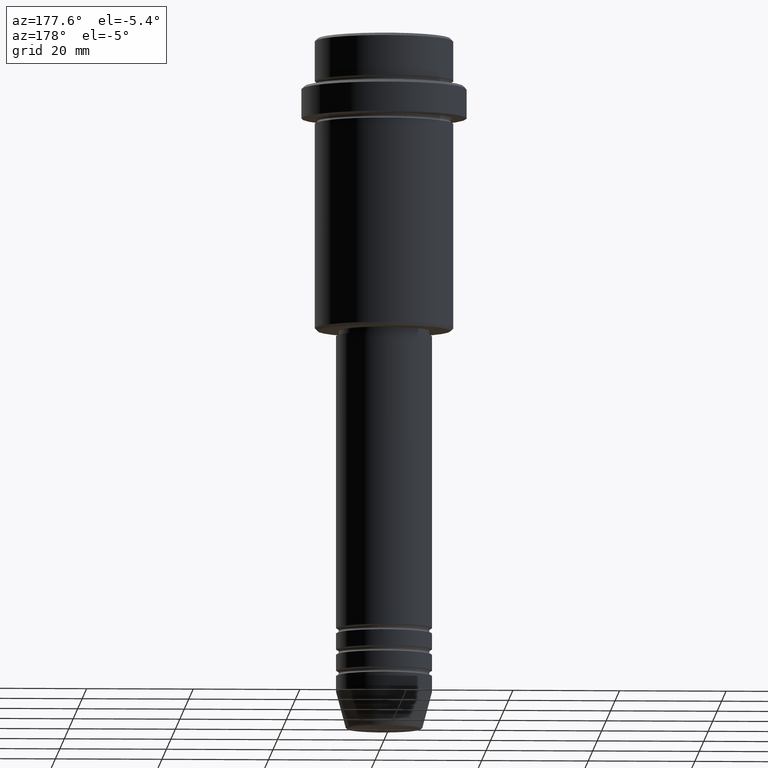
[diagram: clean part render]
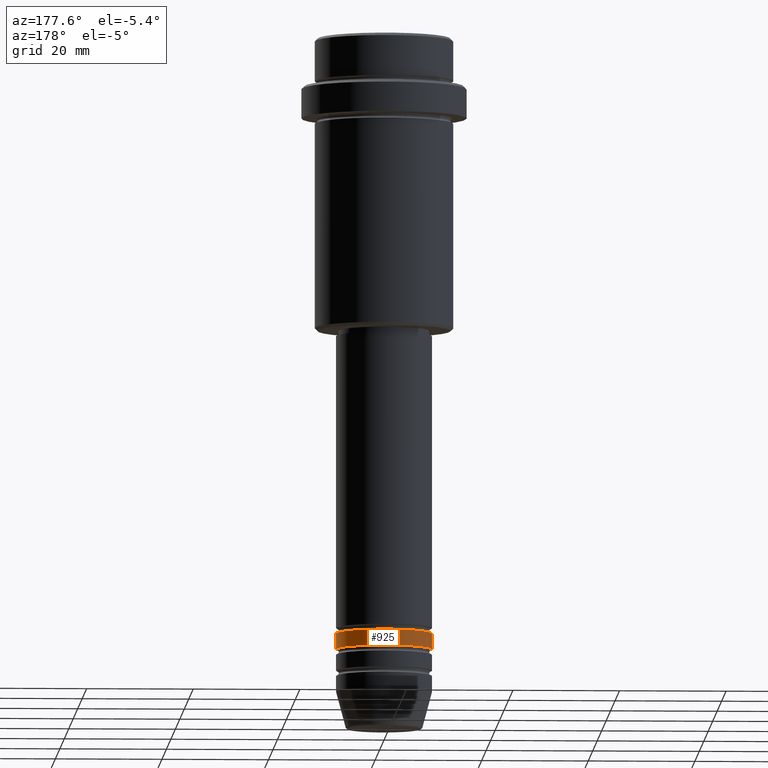
[diagram: same view with one face highlighted and labeled with its STEP entity id]
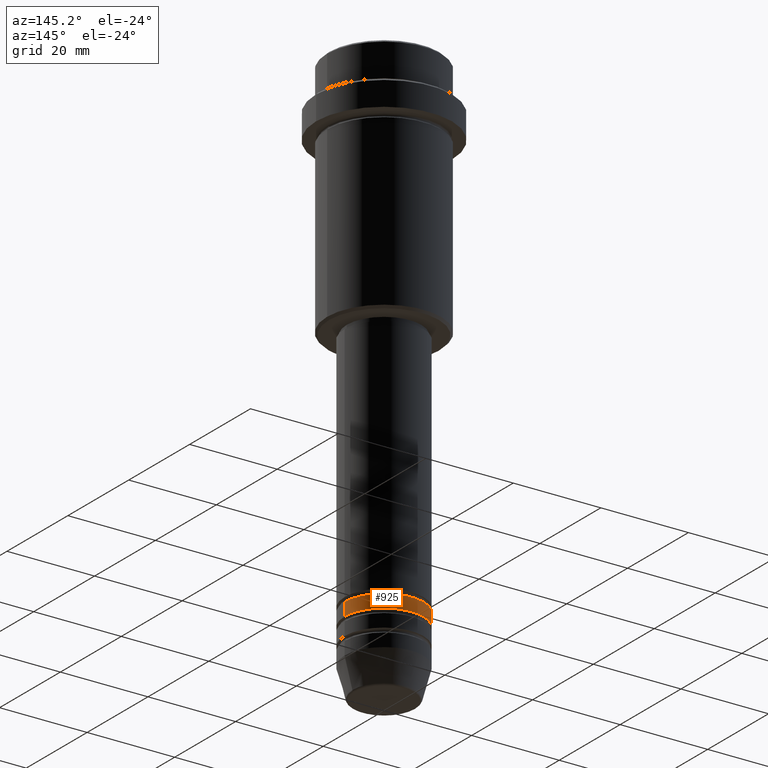
[diagram: same view with one face highlighted and labeled with its STEP entity id]
A machine part, auxiliary view. The second image highlights one B-rep face of the part: STEP entity #925.
A second angle (auxiliary view) of the same face is appended — the face is thin or edge-on in the first view.
In plain terms, the highlighted cylindrical surface (partial cylindrical patch) has radius 9 mm, axis along (-0, -0, 1).
Its self-contained STEP definition (entity closure, byte-faithful):
#49 = CARTESIAN_POINT ( 'NONE',  ( 9.000000000000000000, 0.000000000000000000, 0.000000000000000000 ) ) ;
#79 = CARTESIAN_POINT ( 'NONE',  ( 0.000000000000000000, 0.000000000000000000, 0.000000000000000000 ) ) ;
#119 = ORIENTED_EDGE ( 'NONE', *, *, #1038, .T. ) ;
#127 = CIRCLE ( 'NONE', #1037, 9.000000000000000000 ) ;
#144 = CARTESIAN_POINT ( 'NONE',  ( -9.000000000000000000, 1.102182119232617714E-15, 0.000000000000000000 ) ) ;
#148 = DIRECTION ( 'NONE',  ( -0.000000000000000000, -0.000000000000000000, 1.000000000000000000 ) ) ;
#225 = DIRECTION ( 'NONE',  ( 1.000000000000000000, 0.000000000000000000, 0.000000000000000000 ) ) ;
#234 = EDGE_CURVE ( 'NONE', #817, #359, #920, .T. ) ;
#330 = EDGE_CURVE ( 'NONE', #1111, #359, #1118, .T. ) ;
#359 = VERTEX_POINT ( 'NONE', #379 ) ;
#379 = CARTESIAN_POINT ( 'NONE',  ( -9.000000000000000000, 1.102182119232617714E-15, -111.9999999999998721 ) ) ;
#406 = VERTEX_POINT ( 'NONE', #950 ) ;
#422 = DIRECTION ( 'NONE',  ( -0.000000000000000000, -0.000000000000000000, 1.000000000000000000 ) ) ;
#445 = CARTESIAN_POINT ( 'NONE',  ( 0.000000000000000000, 0.000000000000000000, -111.9999999999998721 ) ) ;
#485 = ORIENTED_EDGE ( 'NONE', *, *, #1198, .F. ) ;
#522 = ORIENTED_EDGE ( 'NONE', *, *, #330, .T. ) ;
#561 = DIRECTION ( 'NONE',  ( 1.000000000000000000, 0.000000000000000000, 0.000000000000000000 ) ) ;
#623 = CYLINDRICAL_SURFACE ( 'NONE', #1036, 9.000000000000000000 ) ;
#717 = DIRECTION ( 'NONE',  ( 1.000000000000000000, 0.000000000000000000, 0.000000000000000000 ) ) ;
#756 = AXIS2_PLACEMENT_3D ( 'NONE', #445, #888, #561 ) ;
#799 = EDGE_LOOP ( 'NONE', ( #119, #522, #1415, #485 ) ) ;
#817 = VERTEX_POINT ( 'NONE', #898 ) ;
#880 = VECTOR ( 'NONE', #148, 1000.000000000000000 ) ;
#888 = DIRECTION ( 'NONE',  ( -0.000000000000000000, -0.000000000000000000, 1.000000000000000000 ) ) ;
#898 = CARTESIAN_POINT ( 'NONE',  ( 9.000000000000000000, 0.000000000000000000, -111.9999999999998721 ) ) ;
#904 = LINE ( 'NONE', #49, #880 ) ;
#920 = CIRCLE ( 'NONE', #756, 9.000000000000000000 ) ;
#925 = ADVANCED_FACE ( 'NONE', ( #1378 ), #623, .T. ) ;
#950 = CARTESIAN_POINT ( 'NONE',  ( 9.000000000000000000, 0.000000000000000000, -114.9999999999998863 ) ) ;
#987 = VECTOR ( 'NONE', #1027, 1000.000000000000000 ) ;
#1027 = DIRECTION ( 'NONE',  ( -0.000000000000000000, -0.000000000000000000, 1.000000000000000000 ) ) ;
#1036 = AXIS2_PLACEMENT_3D ( 'NONE', #79, #1388, #717 ) ;
#1037 = AXIS2_PLACEMENT_3D ( 'NONE', #1082, #422, #225 ) ;
#1038 = EDGE_CURVE ( 'NONE', #406, #1111, #127, .T. ) ;
#1082 = CARTESIAN_POINT ( 'NONE',  ( 0.000000000000000000, 0.000000000000000000, -114.9999999999998863 ) ) ;
#1111 = VERTEX_POINT ( 'NONE', #1398 ) ;
#1118 = LINE ( 'NONE', #144, #987 ) ;
#1198 = EDGE_CURVE ( 'NONE', #406, #817, #904, .T. ) ;
#1378 = FACE_OUTER_BOUND ( 'NONE', #799, .T. ) ;
#1388 = DIRECTION ( 'NONE',  ( -0.000000000000000000, -0.000000000000000000, 1.000000000000000000 ) ) ;
#1398 = CARTESIAN_POINT ( 'NONE',  ( -9.000000000000000000, 1.102182119232617714E-15, -114.9999999999998863 ) ) ;
#1415 = ORIENTED_EDGE ( 'NONE', *, *, #234, .F. ) ;